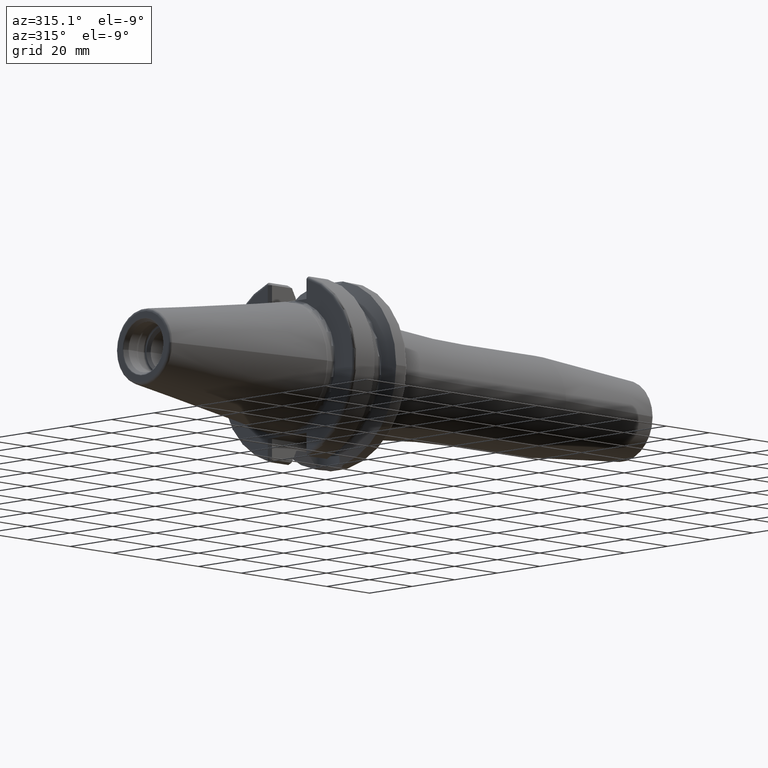
[diagram: clean part render]
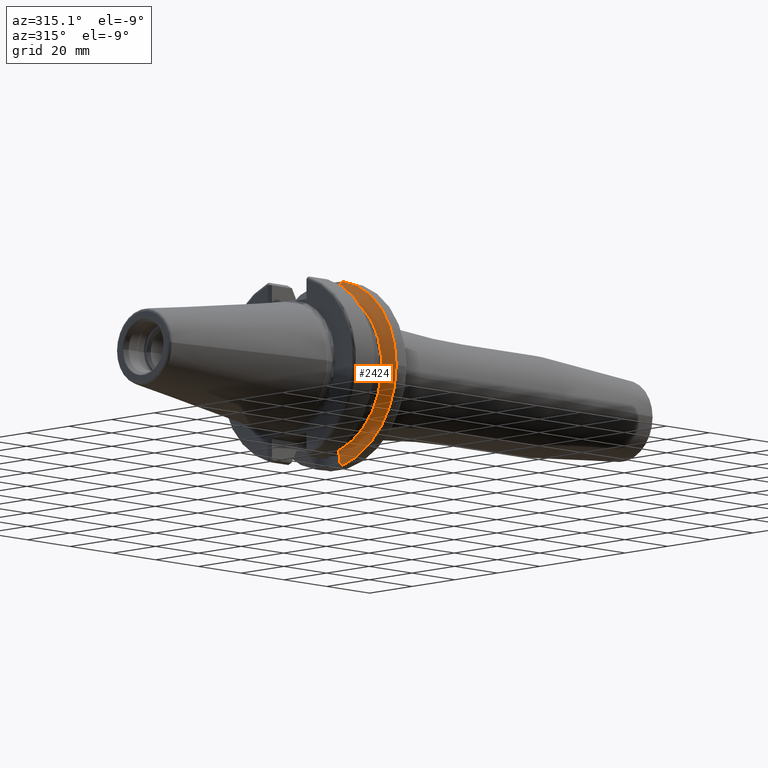
[diagram: same view with one face highlighted and labeled with its STEP entity id]
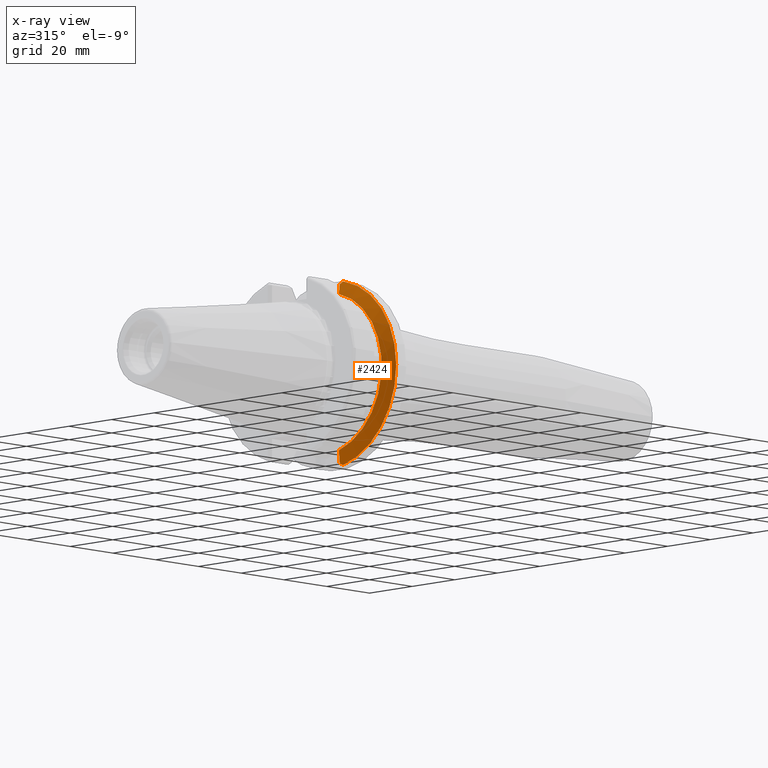
[diagram: x-ray of the same camera — body ghosted, the highlighted face saturated]
A machine part, auxiliary view. The second image highlights one B-rep face of the part: STEP entity #2424.
The next image is the same camera in x-ray: the body ghosted, the highlighted face saturated — about 0% of this face is hidden behind the body in this view.
In plain terms, the highlighted conical surface has half-angle 60 deg.
Its self-contained STEP definition (entity closure, byte-faithful):
#246=CARTESIAN_POINT('',(2.162727746897E1,0.E0,0.E0));
#247=DIRECTION('',(1.E0,0.E0,0.E0));
#248=DIRECTION('',(0.E0,-1.E0,0.E0));
#249=AXIS2_PLACEMENT_3D('',#246,#247,#248);
#390=CARTESIAN_POINT('',(2.105861410330E1,-5.538624876202E0,-2.999548227013E1));
#391=CARTESIAN_POINT('',(2.093797596673E1,-5.667212931971E0,-2.975925502394E1));
#392=CARTESIAN_POINT('',(2.069265782077E1,-5.911926204526E0,-2.927912632192E1));
#393=CARTESIAN_POINT('',(2.031281915354E1,-6.245686951976E0,-2.853656269645E1));
#394=CARTESIAN_POINT('',(1.992518154069E1,-6.546159346979E0,-2.777970817700E1));
#395=CARTESIAN_POINT('',(1.953227047098E1,-6.814802578335E0,-2.701362543231E1));
#396=CARTESIAN_POINT('',(1.926930512179E1,-6.973122571862E0,-2.650168908776E1));
#397=CARTESIAN_POINT('',(1.91375E1,-7.047603759435E0,-2.624530807186E1));
#510=CARTESIAN_POINT('',(1.91375E1,-7.047603759435E0,2.624530807186E1));
#511=CARTESIAN_POINT('',(1.929439846909E1,-6.958942680509E0,2.655049946618E1));
#512=CARTESIAN_POINT('',(1.960708097731E1,-6.768483112184E0,2.715932176805E1));
#513=CARTESIAN_POINT('',(2.007318172595E1,-6.438434899025E0,2.806848574420E1));
#514=CARTESIAN_POINT('',(2.053077179900E1,-6.062239171320E0,2.896247872395E1));
#515=CARTESIAN_POINT('',(2.082597009394E1,-5.780364268794E0,2.954002310797E1));
#516=CARTESIAN_POINT('',(2.097101986641E1,-5.630536201239E0,2.982398115757E1));
#768=CARTESIAN_POINT('',(1.91375E1,0.E0,0.E0));
#769=DIRECTION('',(-1.E0,0.E0,0.E0));
#770=DIRECTION('',(0.E0,-2.593406914876E-1,-9.657859005694E-1));
#771=AXIS2_PLACEMENT_3D('',#768,#769,#770);
#773=CARTESIAN_POINT('',(2.162727746897E1,-6.376922817779E0,-3.083500464774E1));
#774=CARTESIAN_POINT('',(2.156218909379E1,-6.282140745244E0,-3.073948435803E1));
#775=CARTESIAN_POINT('',(2.143328374119E1,-6.093677896303E0,-3.054993954761E1));
#776=CARTESIAN_POINT('',(2.124372162968E1,-5.814243469633E0,-3.027008547410E1));
#777=CARTESIAN_POINT('',(2.111989421200E1,-5.630139092100E0,-3.008651882343E1));
#778=CARTESIAN_POINT('',(2.105861410330E1,-5.538624876202E0,-2.999548227013E1));
#797=CARTESIAN_POINT('',(2.162727746897E1,0.E0,0.E0));
#798=DIRECTION('',(1.E0,0.E0,0.E0));
#799=DIRECTION('',(0.E0,-2.095835969751E-1,9.777907321503E-1));
#800=AXIS2_PLACEMENT_3D('',#797,#798,#799);
#977=CARTESIAN_POINT('',(2.097101986641E1,-5.630536201239E0,2.982398115757E1));
#978=CARTESIAN_POINT('',(2.104137563571E1,-5.736016200038E0,2.992807979955E1));
#979=CARTESIAN_POINT('',(2.118379229094E1,-5.948393440019E0,3.013829960430E1));
#980=CARTESIAN_POINT('',(2.140255866426E1,-6.271300885570E0,3.045972523365E1));
#981=CARTESIAN_POINT('',(2.155180188305E1,-6.489453954811E0,3.067802584122E1));
#982=CARTESIAN_POINT('',(2.162727746897E1,-6.599263509754E0,3.078818567858E1));
#1234=CARTESIAN_POINT('',(1.91375E1,-7.047603759435E0,-2.624530807186E1));
#1235=CARTESIAN_POINT('',(1.91375E1,-7.047603759435E0,2.624530807186E1));
#1236=VERTEX_POINT('',#1234);
#1237=VERTEX_POINT('',#1235);
#1250=CARTESIAN_POINT('',(2.162727746897E1,-3.14875E1,0.E0));
#1251=CARTESIAN_POINT('',(2.162727746897E1,-6.376922817779E0,
-3.083500464774E1));
#1252=VERTEX_POINT('',#1250);
#1253=VERTEX_POINT('',#1251);
#1258=CARTESIAN_POINT('',(2.162727746897E1,-6.599263509754E0,3.078818567858E1));
#1259=VERTEX_POINT('',#1258);
#1350=VERTEX_POINT('',#516);
#1358=VERTEX_POINT('',#390);
#2407=CARTESIAN_POINT('',(2.038238873448E1,0.E0,0.E0));
#2408=DIRECTION('',(1.E0,0.E0,0.E0));
#2409=DIRECTION('',(0.E0,-1.E0,0.E0));
#2410=AXIS2_PLACEMENT_3D('',#2407,#2408,#2409);
#2411=CONICAL_SURFACE('',#2410,2.933128946210E1,6.E1);
#2413=ORIENTED_EDGE('',*,*,#2412,.T.);
#2414=ORIENTED_EDGE('',*,*,#1779,.T.);
#2416=ORIENTED_EDGE('',*,*,#2415,.T.);
#2417=ORIENTED_EDGE('',*,*,#1902,.T.);
#2418=ORIENTED_EDGE('',*,*,#1947,.T.);
#2419=ORIENTED_EDGE('',*,*,#1998,.T.);
#2421=ORIENTED_EDGE('',*,*,#2420,.T.);
#2422=EDGE_LOOP('',(#2413,#2414,#2416,#2417,#2418,#2419,#2421));
#2423=FACE_OUTER_BOUND('',#2422,.F.);
#2424=ADVANCED_FACE('',(#2423),#2411,.T.);
#250=CIRCLE('',#249,3.14875E1);
#398=B_SPLINE_CURVE_WITH_KNOTS('',3,(#390,#391,#392,#393,#394,#395,#396,#397),
.UNSPECIFIED.,.F.,.F.,(4,1,1,1,1,4),(0.E0,2.E-1,4.E-1,6.E-1,8.E-1,1.E0),
.UNSPECIFIED.);
#517=B_SPLINE_CURVE_WITH_KNOTS('',3,(#510,#511,#512,#513,#514,#515,#516),
.UNSPECIFIED.,.F.,.F.,(4,1,1,1,4),(0.E0,2.5E-1,5.E-1,7.5E-1,1.E0),
.UNSPECIFIED.);
#772=CIRCLE('',#771,2.717507892421E1);
#779=B_SPLINE_CURVE_WITH_KNOTS('',3,(#773,#774,#775,#776,#777,#778),
.UNSPECIFIED.,.F.,.F.,(4,1,1,4),(0.E0,3.333333333333E-1,6.666666666667E-1,1.E0),
.UNSPECIFIED.);
#801=CIRCLE('',#800,3.14875E1);
#983=B_SPLINE_CURVE_WITH_KNOTS('',3,(#977,#978,#979,#980,#981,#982),
.UNSPECIFIED.,.F.,.F.,(4,1,1,4),(0.E0,3.333333333333E-1,6.666666666667E-1,1.E0),
.UNSPECIFIED.);
#1779=EDGE_CURVE('',#1252,#1253,#250,.T.);
#1902=EDGE_CURVE('',#1358,#1236,#398,.T.);
#1947=EDGE_CURVE('',#1236,#1237,#772,.T.);
#1998=EDGE_CURVE('',#1237,#1350,#517,.T.);
#2412=EDGE_CURVE('',#1259,#1252,#801,.T.);
#2415=EDGE_CURVE('',#1253,#1358,#779,.T.);
#2420=EDGE_CURVE('',#1350,#1259,#983,.T.);